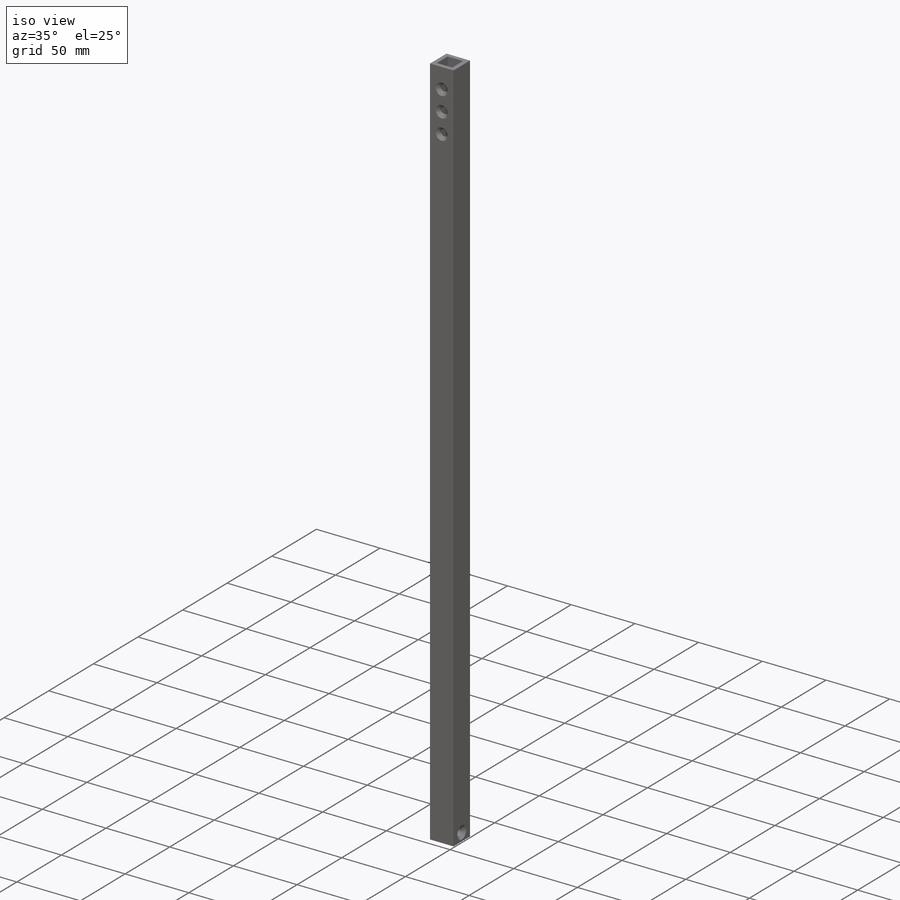
[diagram: iso view]
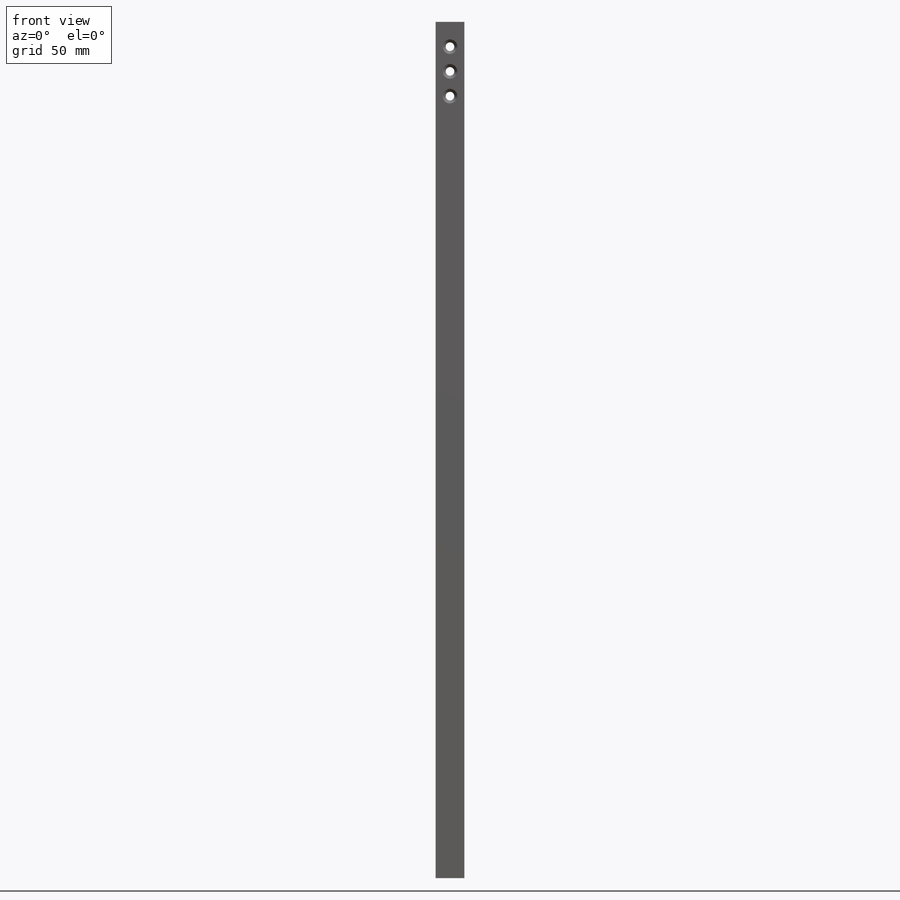
[diagram: front view]
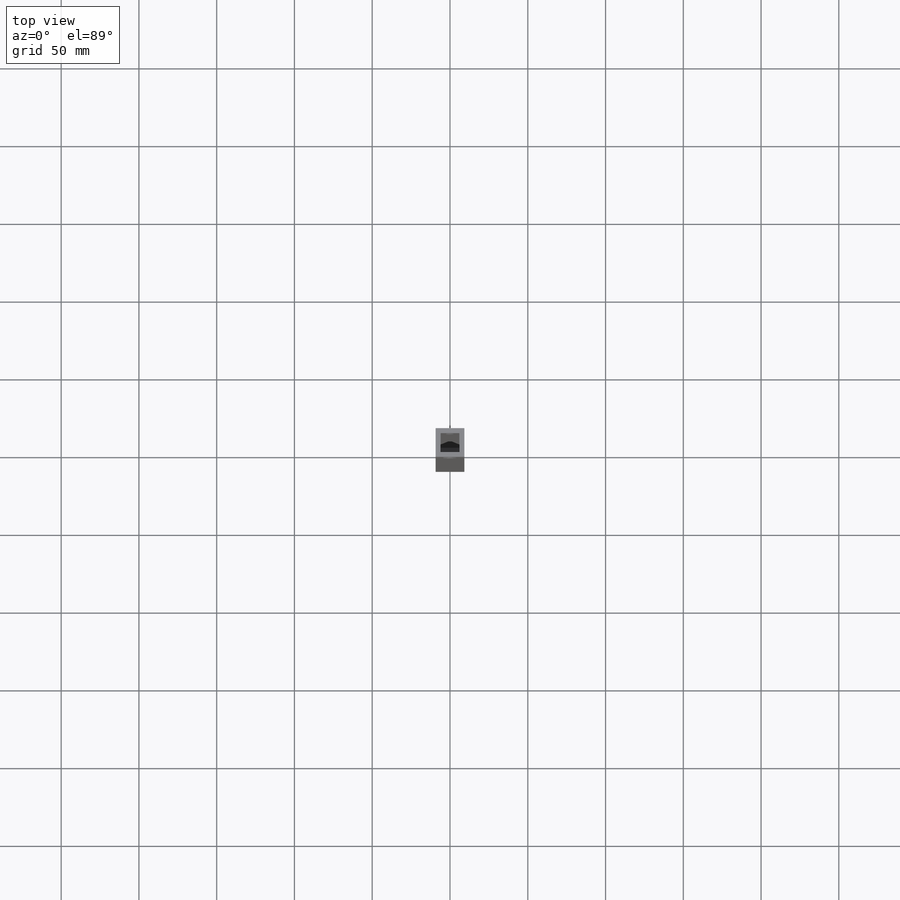
[diagram: top view]
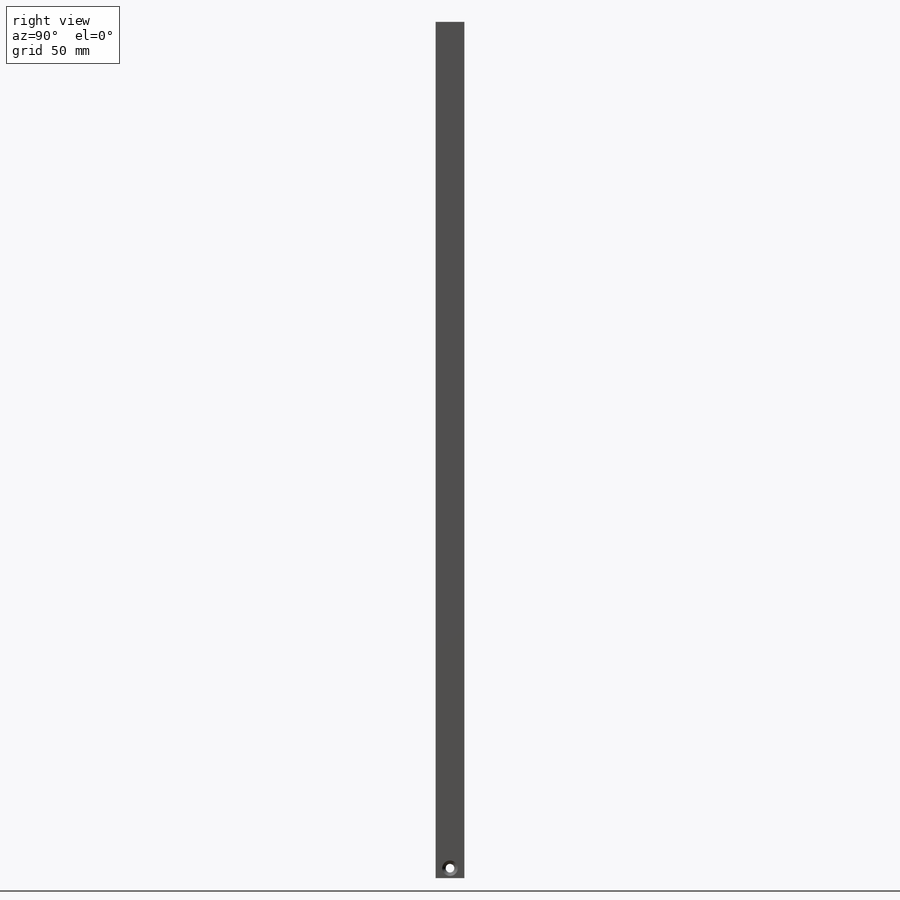
[diagram: right view]
SOLIDWORKS PART (.sldprt)
format: sldprt  version: not decoded by parser v0  size: 169,472 bytes
history: native  units: mm
features: sketch x4, extrude x2, cut_revolve x2, material x1, pattern_linear x1 (+16 scaffold rows collapsed)
feature tree (26):
  scaffold x16  (default folders/planes/origin — collapsed)
  material  "1060 Alloy"
  sketch  "Sketch1"  dims[D1=18.46mm D2=3.175mm]
  extrude  "Boss-Extrude1"  Depth=550.5mm
  sketch  "Sketch2"
  extrude  "Boss-Extrude2"  Depth=12.7mm
  sketch  "Sketch4"  dims[c1.D1=5.55mm c1.D2=3.59mm c1.D3=10.0mm c1.D4=~6.417885mm c2.D4=45.0deg]
  cut_revolve  "Cut-Revolve1"  Angle=360deg
  sketch  "Sketch5"  dims[c1.D1=~18.860145mm c2.D1=45.0deg c2.D2=9.4mm c2.D3=5.55mm c2.D4=13.15mm]
  cut_revolve  "Cut-Revolve2"  Angle=360deg
  pattern_linear  "LPattern1"  Count1=3 Count2=1 Spacing1=15.9mm Spacing2=50mm
decode coverage: 8 of 9 modeling features carry decoded parameters
note: ~ marks probable driven/reference dimensions
note: suppression state not decoded; provenance and decode notes live in map.json
